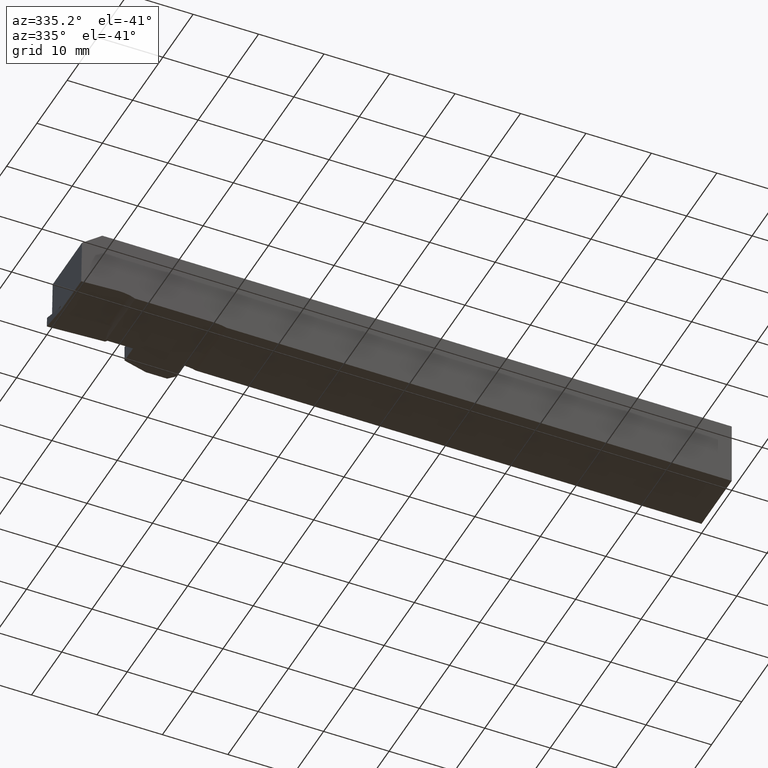
[diagram: clean part render]
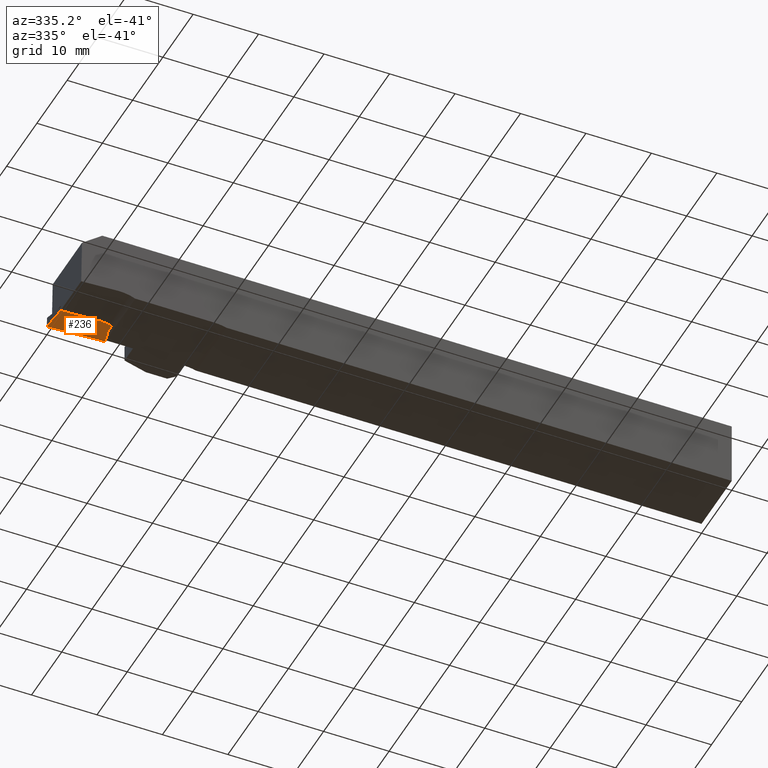
[diagram: same view with one face highlighted and labeled with its STEP entity id]
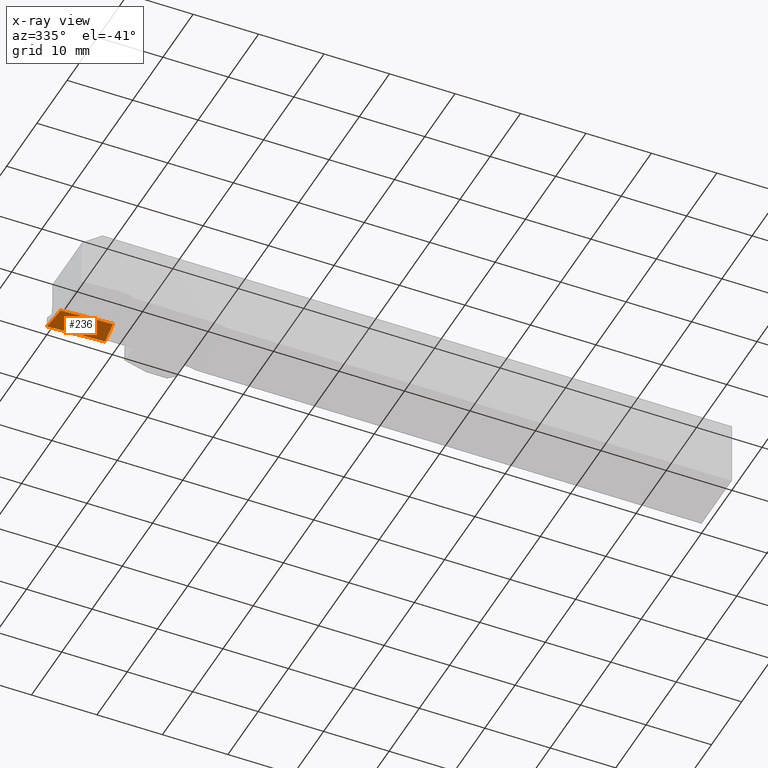
[diagram: x-ray of the same camera — body ghosted, the highlighted face saturated]
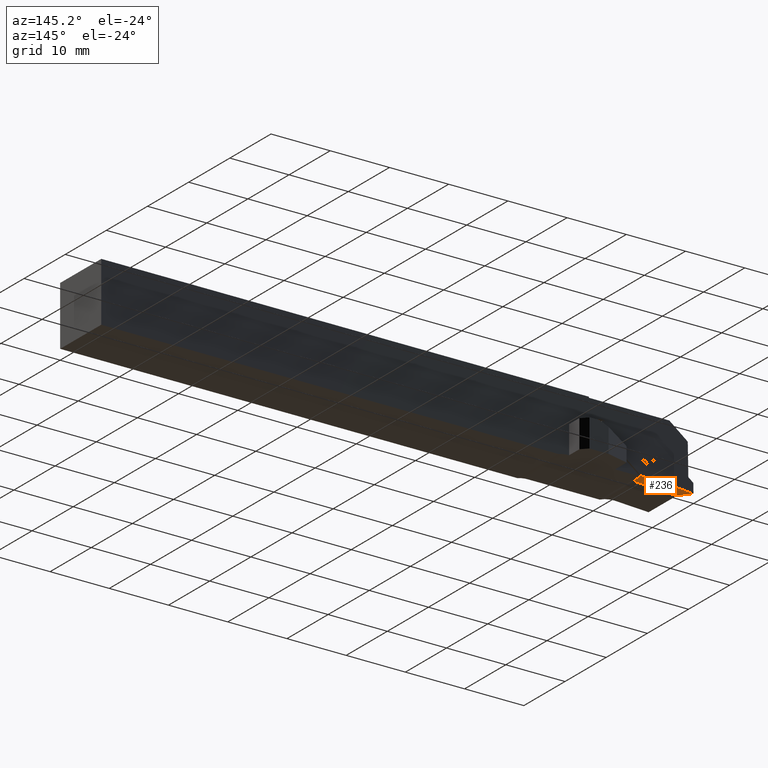
[diagram: same view with one face highlighted and labeled with its STEP entity id]
A machine part, auxiliary view. The second image highlights one B-rep face of the part: STEP entity #236.
The next image is the same camera in x-ray: the body ghosted, the highlighted face saturated — about 0% of this face is hidden behind the body in this view.
A second angle (auxiliary view) of the same face is appended — the face is thin or edge-on in the first view.
In plain terms, the highlighted planar face has unit normal (0.0514, -0.1908, -0.9803).
Its self-contained STEP definition (entity closure, byte-faithful):
#15 = EDGE_CURVE ( 'NONE', #749, #649, #1619, .T. ) ;
#20 = EDGE_LOOP ( 'NONE', ( #1178, #1546, #695, #1953, #1030, #2052, #286 ) ) ;
#113 = CARTESIAN_POINT ( 'NONE',  ( -0.03235039234541396700, -3.180000000000602800, -19.58271774177928700 ) ) ;
#139 = CARTESIAN_POINT ( 'NONE',  ( 6.184543100052085400, -3.180000000000000200, -19.25690415980311000 ) ) ;
#214 = EDGE_CURVE ( 'NONE', #1474, #1502, #1227, .T. ) ;
#236 = ADVANCED_FACE ( 'NONE', ( #1327 ), #1371, .T. ) ;
#261 = CARTESIAN_POINT ( 'NONE',  ( 0.06112628893174907500, -0.3087363877674772500, -20.13670187484108000 ) ) ;
#283 = CARTESIAN_POINT ( 'NONE',  ( -1.101549407245272500E-012, -5.519113579056295600E-013, -20.20000000000080900 ) ) ;
#286 = ORIENTED_EDGE ( 'NONE', *, *, #15, .T. ) ;
#348 = CARTESIAN_POINT ( 'NONE',  ( 8.888875042599046600, -3.712026022330429900E-013, -19.73415379869354800 ) ) ;
#387 = CARTESIAN_POINT ( 'NONE',  ( -1.101549407245272500E-012, -5.519113579056295600E-013, -20.20000000000080900 ) ) ;
#389 = VECTOR ( 'NONE', #1915, 1000.000000000000000 ) ;
#393 = VECTOR ( 'NONE', #1779, 1000.000000000000100 ) ;
#425 = DIRECTION ( 'NONE',  ( -0.9986295347545736100, 0.0000000000000000000, -0.05233595624294801900 ) ) ;
#465 = VERTEX_POINT ( 'NONE', #485 ) ;
#485 = CARTESIAN_POINT ( 'NONE',  ( 8.661896301841766300, -3.180000000000000200, -19.12707157999778900 ) ) ;
#539 = LINE ( 'NONE', #387, #914 ) ;
#585 = CARTESIAN_POINT ( 'NONE',  ( 15.62399635050810400, -3.180000000000000200, -18.76220337730058300 ) ) ;
#649 = VERTEX_POINT ( 'NONE', #283 ) ;
#674 = LINE ( 'NONE', #113, #1939 ) ;
#681 = CARTESIAN_POINT ( 'NONE',  ( 8.867461953849249000, -0.2999999999999822300, -19.67688189126952700 ) ) ;
#690 = CARTESIAN_POINT ( 'NONE',  ( 0.6296037866249902800, -3.180000000000619200, -19.54802619327221800 ) ) ;
#695 = ORIENTED_EDGE ( 'NONE', *, *, #214, .F. ) ;
#720 = EDGE_CURVE ( 'NONE', #1502, #929, #977, .T. ) ;
#749 = VERTEX_POINT ( 'NONE', #690 ) ;
#824 = CARTESIAN_POINT ( 'NONE',  ( 8.851489893868274500, -0.5237705195204553900, -19.63416267634202900 ) ) ;
#842 = LINE ( 'NONE', #585, #1851 ) ;
#878 = DIRECTION ( 'NONE',  ( 0.9986295347545740600, 2.092823369747881100E-014, 0.05233595624294126000 ) ) ;
#905 = EDGE_CURVE ( 'NONE', #465, #1474, #1624, .T. ) ;
#914 = VECTOR ( 'NONE', #878, 1000.000000000000000 ) ;
#929 = VERTEX_POINT ( 'NONE', #348 ) ;
#977 = LINE ( 'NONE', #1981, #1730 ) ;
#1015 = EDGE_CURVE ( 'NONE', #1564, #465, #674, .T. ) ;
#1017 = DIRECTION ( 'NONE',  ( 0.06993911051308002200, 0.9798555172570041500, -0.1870606482444878700 ) ) ;
#1030 = ORIENTED_EDGE ( 'NONE', *, *, #1015, .F. ) ;
#1037 = CARTESIAN_POINT ( 'NONE',  ( 8.851489893868274500, -0.5237705195204553900, -19.63416267634202900 ) ) ;
#1178 = ORIENTED_EDGE ( 'NONE', *, *, #1442, .T. ) ;
#1201 = CARTESIAN_POINT ( 'NONE',  ( -1.101549407245272500E-012, -5.519113579056295600E-013, -20.20000000000080900 ) ) ;
#1227 = LINE ( 'NONE', #1037, #1643 ) ;
#1327 = FACE_OUTER_BOUND ( 'NONE', #20, .T. ) ;
#1371 = PLANE ( 'NONE',  #1869 ) ;
#1442 = EDGE_CURVE ( 'NONE', #649, #929, #539, .T. ) ;
#1474 = VERTEX_POINT ( 'NONE', #1835 ) ;
#1502 = VERTEX_POINT ( 'NONE', #681 ) ;
#1524 = DIRECTION ( 'NONE',  ( -0.009986171232771760500, -0.9816271834476542100, 0.1905474982799178800 ) ) ;
#1546 = ORIENTED_EDGE ( 'NONE', *, *, #720, .F. ) ;
#1557 = DIRECTION ( 'NONE',  ( 0.9986295347545740600, 2.092823369747882700E-014, 0.05233595624294148200 ) ) ;
#1564 = VERTEX_POINT ( 'NONE', #139 ) ;
#1619 = LINE ( 'NONE', #261, #389 ) ;
#1624 = LINE ( 'NONE', #824, #393 ) ;
#1643 = VECTOR ( 'NONE', #1998, 1000.000000000000100 ) ;
#1671 = EDGE_CURVE ( 'NONE', #1564, #749, #842, .T. ) ;
#1730 = VECTOR ( 'NONE', #1017, 1000.000000000000100 ) ;
#1779 = DIRECTION ( 'NONE',  ( 0.06993911051308002200, 0.9798555172570041500, -0.1870606482444878700 ) ) ;
#1835 = CARTESIAN_POINT ( 'NONE',  ( 8.739069073698711800, -2.098799999999999800, -19.33347953435478300 ) ) ;
#1842 = DIRECTION ( 'NONE',  ( 0.05137439731980332500, -0.1908089953765952600, -0.9802818975087734800 ) ) ;
#1851 = VECTOR ( 'NONE', #425, 1000.000000000000100 ) ;
#1869 = AXIS2_PLACEMENT_3D ( 'NONE', #1201, #1842, #1524 ) ;
#1915 = DIRECTION ( 'NONE',  ( -0.1904058831238844800, 0.9617011860410704700, -0.1971710638988689300 ) ) ;
#1939 = VECTOR ( 'NONE', #1557, 1000.000000000000000 ) ;
#1953 = ORIENTED_EDGE ( 'NONE', *, *, #905, .F. ) ;
#1981 = CARTESIAN_POINT ( 'NONE',  ( 8.851489893868274500, -0.5237705195204553900, -19.63416267634202900 ) ) ;
#1998 = DIRECTION ( 'NONE',  ( 0.06993911051308002200, 0.9798555172570041500, -0.1870606482444878700 ) ) ;
#2052 = ORIENTED_EDGE ( 'NONE', *, *, #1671, .T. ) ;